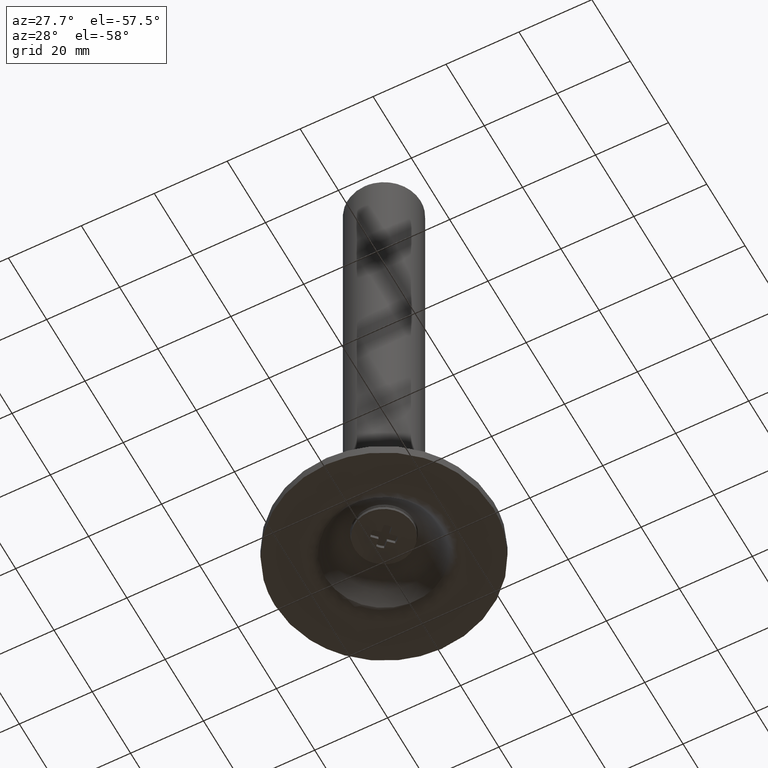
[diagram: clean part render]
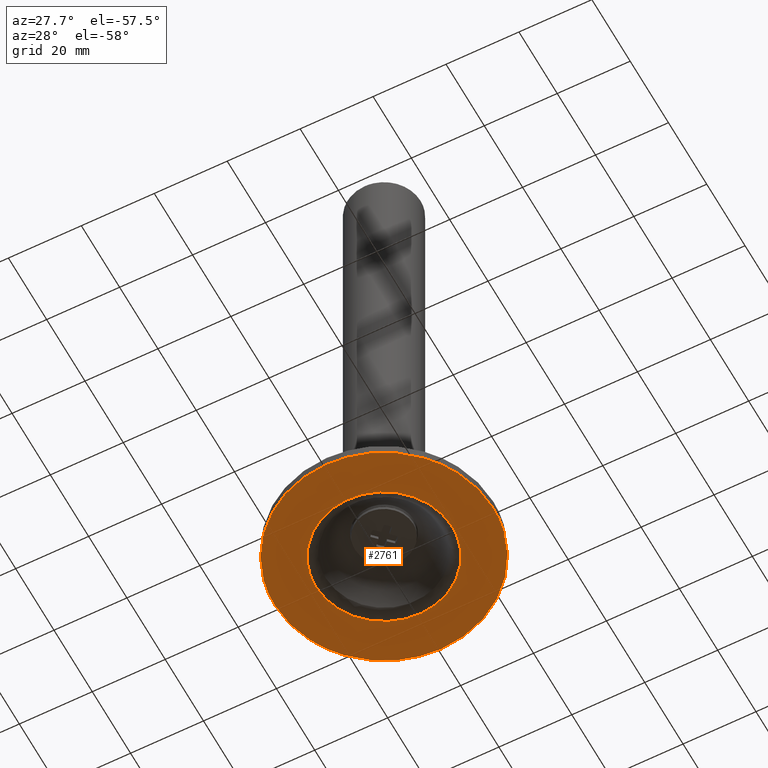
[diagram: same view with one face highlighted and labeled with its STEP entity id]
A machine part, auxiliary view. The second image highlights one B-rep face of the part: STEP entity #2761.
In plain terms, the highlighted face is a freeform B-spline surface patch.
Its self-contained STEP definition (entity closure, byte-faithful):
#2350=CARTESIAN_POINT('',(21.761230765545118,-20.650637016441380,-1.387779E-016));
#2351=VERTEX_POINT('',#2350);
#2357=CARTESIAN_POINT('',(30.0,0.0,0.0));
#2358=VERTEX_POINT('',#2357);
#2359=CARTESIAN_POINT('',(30.0,0.0,0.0));
#2360=CARTESIAN_POINT('',(30.000183377867700,-1.838739617620140,-1.235683E-017));
#2361=CARTESIAN_POINT('',(29.660898921389759,-5.516168831245085,-3.707015E-017));
#2362=CARTESIAN_POINT('',(28.363253247305799,-10.101253346123579,-6.788316E-017));
#2363=CARTESIAN_POINT('',(26.687648335277430,-13.841605054287360,-9.301934E-017));
#2364=CARTESIAN_POINT('',(24.692253565640790,-17.217599870902362,-1.157069E-016));
#2365=CARTESIAN_POINT('',(22.904549774524710,-19.446032984824779,-1.306826E-016));
#2366=CARTESIAN_POINT('',(21.761230765545118,-20.650637016441380,-1.387779E-016));
#2367=B_SPLINE_CURVE_WITH_KNOTS('',3,(#2359,#2360,#2361,#2362,#2363,#2364,#2365,#2366),.UNSPECIFIED.,.F.,.U.,(4,1,1,1,1,4),(0.000000022256284,5.516202165976527,11.032428558268119,14.235361105252730,17.794207202618342,22.776580025743879),.UNSPECIFIED.);
#2368=EDGE_CURVE('',#2358,#2351,#2367,.T.);
#2370=CARTESIAN_POINT('',(0.000001761338240,29.999999999999940,0.0));
#2371=VERTEX_POINT('',#2370);
#2372=CARTESIAN_POINT('',(0.000001761338240,29.999999999999940,0.0));
#2373=CARTESIAN_POINT('',(2.086229581603931,30.000278536362849,0.0));
#2374=CARTESIAN_POINT('',(6.135829194591464,29.575907864060088,0.0));
#2375=CARTESIAN_POINT('',(11.190604742922870,27.974587807741141,0.0));
#2376=CARTESIAN_POINT('',(15.528528393269760,25.790869995812269,0.0));
#2377=CARTESIAN_POINT('',(18.958963661492280,23.390681587139579,0.0));
#2378=CARTESIAN_POINT('',(21.906538204748330,20.601374966317231,0.0));
#2379=CARTESIAN_POINT('',(24.341667302574329,17.671048877060208,0.0));
#2380=CARTESIAN_POINT('',(26.226562289995680,14.714615557634691,0.0));
#2381=CARTESIAN_POINT('',(27.902756598369070,11.226108133390120,0.0));
#2382=CARTESIAN_POINT('',(29.101911703390510,7.669762039616171,0.0));
#2383=CARTESIAN_POINT('',(29.845434248600430,3.742892421914155,0.0));
#2384=CARTESIAN_POINT('',(30.000035239689542,1.227172351174387,0.0));
#2385=CARTESIAN_POINT('',(30.0,0.0,0.0));
#2386=B_SPLINE_CURVE_WITH_KNOTS('',3,(#2372,#2373,#2374,#2375,#2376,#2377,#2378,#2379,#2380,#2381,#2382,#2383,#2384,#2385),.UNSPECIFIED.,.F.,.U.,(4,1,1,1,1,1,1,1,1,1,1,4),(0.000000088041674,6.258635742040475,12.149147541237570,15.830714375185870,20.800826725328470,24.666443345403270,27.979845836676390,32.213644572505409,35.158893277056379,39.576772422274153,43.442441905843360,47.123962734833711),.UNSPECIFIED.);
#2387=EDGE_CURVE('',#2371,#2358,#2386,.T.);
#2389=CARTESIAN_POINT('',(-21.761230765545200,20.650637016441468,-1.387779E-016));
#2390=VERTEX_POINT('',#2389);
#2391=CARTESIAN_POINT('',(-21.761230765545200,20.650637016441468,-1.387779E-016));
#2392=CARTESIAN_POINT('',(-20.146695814922090,22.352717505585719,-1.284815E-016));
#2393=CARTESIAN_POINT('',(-17.300580464178140,24.721266517780471,-1.103310E-016));
#2394=CARTESIAN_POINT('',(-13.252856310191770,26.987236197412368,-8.451743E-017));
#2395=CARTESIAN_POINT('',(-9.446696908266837,28.579970737940929,-6.024442E-017));
#2396=CARTESIAN_POINT('',(-5.135775263343249,29.711985133281040,-3.275238E-017));
#2397=CARTESIAN_POINT('',(-1.648511353710938,30.000079244026100,-1.051306E-017));
#2398=CARTESIAN_POINT('',(0.000001761338240,29.999999999999940,0.0));
#2399=B_SPLINE_CURVE_WITH_KNOTS('',3,(#2391,#2392,#2393,#2394,#2395,#2396,#2397,#2398),.UNSPECIFIED.,.F.,.U.,(4,1,1,1,1,4),(0.000000025370674,7.037918678431822,11.032414331042760,13.885611750113910,19.401829110458159,24.347385364184198),.UNSPECIFIED.);
#2400=EDGE_CURVE('',#2390,#2371,#2399,.T.);
#2430=CARTESIAN_POINT('',(-30.0,0.0,0.0));
#2431=VERTEX_POINT('',#2430);
#2432=CARTESIAN_POINT('',(-30.0,0.0,0.0));
#2433=CARTESIAN_POINT('',(-30.000134338496672,1.660798569054430,-1.116102E-017));
#2434=CARTESIAN_POINT('',(-29.787631307135960,4.211248456775063,-2.830073E-017));
#2435=CARTESIAN_POINT('',(-28.931402114226099,8.217497877866416,-5.522381E-017));
#2436=CARTESIAN_POINT('',(-27.845080407027378,11.366847081823220,-7.638829E-017));
#2437=CARTESIAN_POINT('',(-26.231451947179771,14.675450994737149,-9.862301E-017));
#2438=CARTESIAN_POINT('',(-24.367412388973520,17.645231249253410,-1.185807E-016));
#2439=CARTESIAN_POINT('',(-22.700339627715429,19.661105762294451,-1.321280E-016));
#2440=CARTESIAN_POINT('',(-21.761230765545200,20.650637016441468,-1.387779E-016));
#2441=B_SPLINE_CURVE_WITH_KNOTS('',3,(#2432,#2433,#2434,#2435,#2436,#2437,#2438,#2439,#2440),.UNSPECIFIED.,.F.,.U.,(4,1,1,1,1,1,4),(0.000000022260863,4.982372845393822,7.651512648824889,12.277987396734890,14.947118538954641,18.683921851899139,22.776580025743879),.UNSPECIFIED.);
#2442=EDGE_CURVE('',#2431,#2390,#2441,.T.);
#2444=CARTESIAN_POINT('',(-0.000001761338741,-29.999999999999940,0.0));
#2445=VERTEX_POINT('',#2444);
#2446=CARTESIAN_POINT('',(-0.000001761338741,-29.999999999999940,0.0));
#2447=CARTESIAN_POINT('',(-1.411266566884589,-30.000068430606539,0.0));
#2448=CARTESIAN_POINT('',(-4.172410812092328,-29.804808277220712,0.0));
#2449=CARTESIAN_POINT('',(-7.902673025783717,-29.015107267923749,0.0));
#2450=CARTESIAN_POINT('',(-11.799570524671299,-27.687934839012630,0.0));
#2451=CARTESIAN_POINT('',(-15.375205928075459,-25.888110620829060,0.0));
#2452=CARTESIAN_POINT('',(-18.993972540913859,-23.339404452700631,0.0));
#2453=CARTESIAN_POINT('',(-21.878893006316581,-20.659460671805821,0.0));
#2454=CARTESIAN_POINT('',(-24.374816971589009,-17.618118783256900,0.0));
#2455=CARTESIAN_POINT('',(-26.249464690356589,-14.657686166007551,0.0));
#2456=CARTESIAN_POINT('',(-27.909892463914868,-11.229122439531251,0.0));
#2457=CARTESIAN_POINT('',(-29.507645976695539,-6.442442463604786,0.0));
#2458=CARTESIAN_POINT('',(-30.000688485846599,-2.454434423405128,0.0));
#2459=CARTESIAN_POINT('',(-30.0,0.0,0.0));
#2460=B_SPLINE_CURVE_WITH_KNOTS('',3,(#2446,#2447,#2448,#2449,#2450,#2451,#2452,#2453,#2454,#2455,#2456,#2457,#2458,#2459),.UNSPECIFIED.,.F.,.U.,(4,1,1,1,1,1,1,1,1,1,1,4),(0.000000088046470,4.233791065261279,8.283493043444182,11.412833437220939,16.567040222353839,20.248591773461460,24.666443345402278,28.347978279768899,32.029552027540163,35.158893277055228,39.760867844476280,47.123962734833363),.UNSPECIFIED.);
#2461=EDGE_CURVE('',#2445,#2431,#2460,.T.);
#2463=CARTESIAN_POINT('',(21.761230765545118,-20.650637016441380,-1.387779E-016));
#2464=CARTESIAN_POINT('',(20.277578357340019,-22.214673628539320,-1.293162E-016));
#2465=CARTESIAN_POINT('',(17.457155654357152,-24.607695248408110,-1.113295E-016));
#2466=CARTESIAN_POINT('',(13.097464495304219,-27.103380513349698,-8.352645E-017));
#2467=CARTESIAN_POINT('',(9.316537219511265,-28.601454553840099,-5.941435E-017));
#2468=CARTESIAN_POINT('',(5.008881004080665,-29.703457535541311,-3.194314E-017));
#2469=CARTESIAN_POINT('',(1.902154790490160,-30.000244703110742,-1.213062E-017));
#2470=CARTESIAN_POINT('',(-0.000001761338741,-29.999999999999940,0.0));
#2471=B_SPLINE_CURVE_WITH_KNOTS('',3,(#2463,#2464,#2465,#2466,#2467,#2468,#2469,#2470),.UNSPECIFIED.,.F.,.U.,(4,1,1,1,1,4),(0.000000025373495,6.467275222331569,11.032414331043110,15.026895159149600,18.640967891737361,24.347385364184639),.UNSPECIFIED.);
#2472=EDGE_CURVE('',#2351,#2445,#2471,.T.);
#2613=CARTESIAN_POINT('',(-17.362253349668990,-6.874202397090139,4.932547E-016));
#2614=VERTEX_POINT('',#2613);
#2625=CARTESIAN_POINT('',(-18.673577589738851,0.0,0.0));
#2626=VERTEX_POINT('',#2625);
#2627=CARTESIAN_POINT('',(-17.362253349668990,-6.874202397090139,4.932547E-016));
#2628=CARTESIAN_POINT('',(-17.821342641880850,-5.715173315710301,4.069459E-016));
#2629=CARTESIAN_POINT('',(-18.465611774957932,-3.446519757421674,2.413666E-016));
#2630=CARTESIAN_POINT('',(-18.673673424889198,-1.099970937600993,7.615526E-017));
#2631=CARTESIAN_POINT('',(-18.673577589738851,0.0,0.0));
#2632=B_SPLINE_CURVE_WITH_KNOTS('',3,(#2627,#2628,#2629,#2630,#2631),.UNSPECIFIED.,.F.,.U.,(4,1,4),(2.696438E-009,3.739900916369684,7.039813609217287),.UNSPECIFIED.);
#2633=EDGE_CURVE('',#2614,#2626,#2632,.T.);
#2635=CARTESIAN_POINT('',(17.362253349668990,6.874202397090141,4.932547E-016));
#2636=VERTEX_POINT('',#2635);
#2637=CARTESIAN_POINT('',(-18.673577589738851,0.0,0.0));
#2638=CARTESIAN_POINT('',(-18.673636372542902,1.008282936778919,2.539517E-018));
#2639=CARTESIAN_POINT('',(-18.509865505067872,3.024846447186139,9.783067E-018));
#2640=CARTESIAN_POINT('',(-17.714916595328109,6.232406993563199,2.836339E-017));
#2641=CARTESIAN_POINT('',(-16.289086827895950,9.369955938065449,5.509956E-017));
#2642=CARTESIAN_POINT('',(-14.364459997488630,12.060092618559590,8.729626E-017));
#2643=CARTESIAN_POINT('',(-12.225487299052009,14.209560341025490,1.209617E-016));
#2644=CARTESIAN_POINT('',(-9.785241688539786,16.013893256015621,1.577366E-016));
#2645=CARTESIAN_POINT('',(-7.189318014801912,17.312544690308389,1.952936E-016));
#2646=CARTESIAN_POINT('',(-4.177881072469492,18.286160079065439,2.375195E-016));
#2647=CARTESIAN_POINT('',(-1.104758078132017,18.752886768051440,2.792830E-016));
#2648=CARTESIAN_POINT('',(2.064063964795700,18.631344943482080,3.208283E-016));
#2649=CARTESIAN_POINT('',(4.842624575957353,18.098456674747538,3.561830E-016));
#2650=CARTESIAN_POINT('',(7.585135679412806,17.159597976450399,3.900387E-016));
#2651=CARTESIAN_POINT('',(10.254923926742020,15.710552766109300,4.216486E-016));
#2652=CARTESIAN_POINT('',(12.908132208226560,13.631648350012030,4.514527E-016));
#2653=CARTESIAN_POINT('',(15.426006144843180,10.806688914474639,4.775897E-016));
#2654=CARTESIAN_POINT('',(16.793440583289780,8.311837906970478,4.893642E-016));
#2655=CARTESIAN_POINT('',(17.362253349668990,6.874202397090141,4.932547E-016));
#2656=B_SPLINE_CURVE_WITH_KNOTS('',3,(#2637,#2638,#2639,#2640,#2641,#2642,#2643,#2644,#2645,#2646,#2647,#2648,#2649,#2650,#2651,#2652,#2653,#2654,#2655),.UNSPECIFIED.,.F.,.U.,(4,1,1,1,1,1,1,1,1,1,1,1,1,1,1,1,4),(0.000000034855375,3.024858914175049,6.049773929223143,9.881372276748010,13.309638955313250,15.931258862504690,18.956195992535839,22.384449906628848,24.602667687891710,28.434148865085980,31.660742275145569,34.080690769337977,36.903980318147347,40.332244293627241,43.155494875937208,46.987114619018627,51.625252121712883),.UNSPECIFIED.);
#2657=EDGE_CURVE('',#2626,#2636,#2656,.T.);
#2705=CARTESIAN_POINT('',(18.673577589738851,0.0,0.0));
#2706=VERTEX_POINT('',#2705);
#2707=CARTESIAN_POINT('',(17.362253349668990,6.874202397090141,4.932547E-016));
#2708=CARTESIAN_POINT('',(17.713232998371051,5.987862490009603,4.272534E-016));
#2709=CARTESIAN_POINT('',(18.409601369642949,3.739756206651510,2.624085E-016));
#2710=CARTESIAN_POINT('',(18.673887644167181,1.393321932226255,9.646259E-017));
#2711=CARTESIAN_POINT('',(18.673577589738851,0.0,0.0));
#2712=B_SPLINE_CURVE_WITH_KNOTS('',3,(#2707,#2708,#2709,#2710,#2711),.UNSPECIFIED.,.F.,.U.,(4,1,4),(2.696424E-009,2.859924366310330,7.039813609217293),.UNSPECIFIED.);
#2713=EDGE_CURVE('',#2636,#2706,#2712,.T.);
#2715=CARTESIAN_POINT('',(18.673577589738851,0.0,0.0));
#2716=CARTESIAN_POINT('',(18.673850152107288,-1.411630490020007,3.552897E-018));
#2717=CARTESIAN_POINT('',(18.428466114520401,-3.562516396983083,1.221275E-017));
#2718=CARTESIAN_POINT('',(17.572972403089661,-6.469513112644299,3.083546E-017));
#2719=CARTESIAN_POINT('',(16.457170010000009,-8.997018071978539,5.194005E-017));
#2720=CARTESIAN_POINT('',(14.798176132757760,-11.541677293407821,8.026194E-017));
#2721=CARTESIAN_POINT('',(12.820206352634139,-13.662399258586561,1.117286E-016));
#2722=CARTESIAN_POINT('',(10.673146206324089,-15.398144072211631,1.444585E-016));
#2723=CARTESIAN_POINT('',(8.242946082851359,-16.853197295838800,1.802207E-016));
#2724=CARTESIAN_POINT('',(5.037396500498588,-18.104301084247918,2.257094E-016));
#2725=CARTESIAN_POINT('',(1.843163047236794,-18.678008862860960,2.693420E-016));
#2726=CARTESIAN_POINT('',(-1.255453809103990,-18.692998023769292,3.103041E-016));
#2727=CARTESIAN_POINT('',(-3.927257038187737,-18.328857711446052,3.446739E-016));
#2728=CARTESIAN_POINT('',(-6.643018228919265,-17.528233841947930,3.785247E-016));
#2729=CARTESIAN_POINT('',(-9.634751504557817,-16.127855048465669,4.145092E-016));
#2730=CARTESIAN_POINT('',(-12.319521806145680,-14.183354701833681,4.450687E-016));
#2731=CARTESIAN_POINT('',(-14.259527117270210,-12.121041396856850,4.654951E-016));
#2732=CARTESIAN_POINT('',(-15.950374384244011,-9.857606377603528,4.821240E-016));
#2733=CARTESIAN_POINT('',(-16.842893544608540,-8.186824840826473,4.897024E-016));
#2734=CARTESIAN_POINT('',(-17.362253349668990,-6.874202397090139,4.932547E-016));
#2735=B_SPLINE_CURVE_WITH_KNOTS('',3,(#2715,#2716,#2717,#2718,#2719,#2720,#2721,#2722,#2723,#2724,#2725,#2726,#2727,#2728,#2729,#2730,#2731,#2732,#2733,#2734),.UNSPECIFIED.,.F.,.U.,(4,1,1,1,1,1,1,1,1,1,1,1,1,1,1,1,1,4),(0.000000034858537,4.234823777278685,6.453112032360714,9.074751727549653,12.502990230406120,15.527924867452070,17.746211215015421,20.771159110500260,23.997685628077299,28.030838262522231,30.450802799620082,33.274076191222854,36.097321373615372,38.920602615403027,43.155494875937009,45.978760879385547,47.390442502301617,51.625252121712862),.UNSPECIFIED.);
#2736=EDGE_CURVE('',#2706,#2614,#2735,.T.);
#2742=CARTESIAN_POINT('',(-32.996999883708362,-32.996999883708298,0.0));
#2743=CARTESIAN_POINT('',(32.997001493033771,-32.996999883708298,0.0));
#2744=CARTESIAN_POINT('',(-32.996999883708362,32.997001493033700,0.0));
#2745=CARTESIAN_POINT('',(32.997001493033771,32.997001493033700,0.0));
#2746=B_SPLINE_SURFACE_WITH_KNOTS('',1,1,((#2742,#2744),(#2743,#2745)),.UNSPECIFIED.,.F.,.F.,.U.,(2,2),(2,2),(0.0,65.994001376742119),(0.0,65.994001376742006),.UNSPECIFIED.);
#2747=ORIENTED_EDGE('',*,*,#2442,.T.);
#2748=ORIENTED_EDGE('',*,*,#2400,.T.);
#2749=ORIENTED_EDGE('',*,*,#2387,.T.);
#2750=ORIENTED_EDGE('',*,*,#2368,.T.);
#2751=ORIENTED_EDGE('',*,*,#2472,.T.);
#2752=ORIENTED_EDGE('',*,*,#2461,.T.);
#2753=EDGE_LOOP('',(#2747,#2748,#2749,#2750,#2751,#2752));
#2754=FACE_OUTER_BOUND('',#2753,.T.);
#2755=ORIENTED_EDGE('',*,*,#2657,.F.);
#2756=ORIENTED_EDGE('',*,*,#2633,.F.);
#2757=ORIENTED_EDGE('',*,*,#2736,.F.);
#2758=ORIENTED_EDGE('',*,*,#2713,.F.);
#2759=EDGE_LOOP('',(#2755,#2756,#2757,#2758));
#2760=FACE_BOUND('',#2759,.T.);
#2761=ADVANCED_FACE('',(#2754,#2760),#2746,.F.);